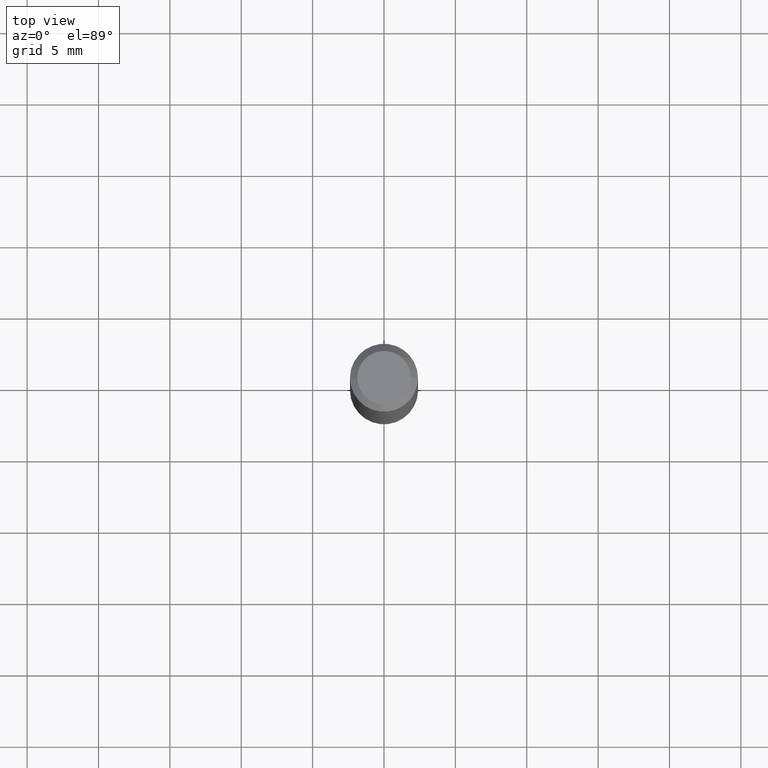
[diagram: clean part render]
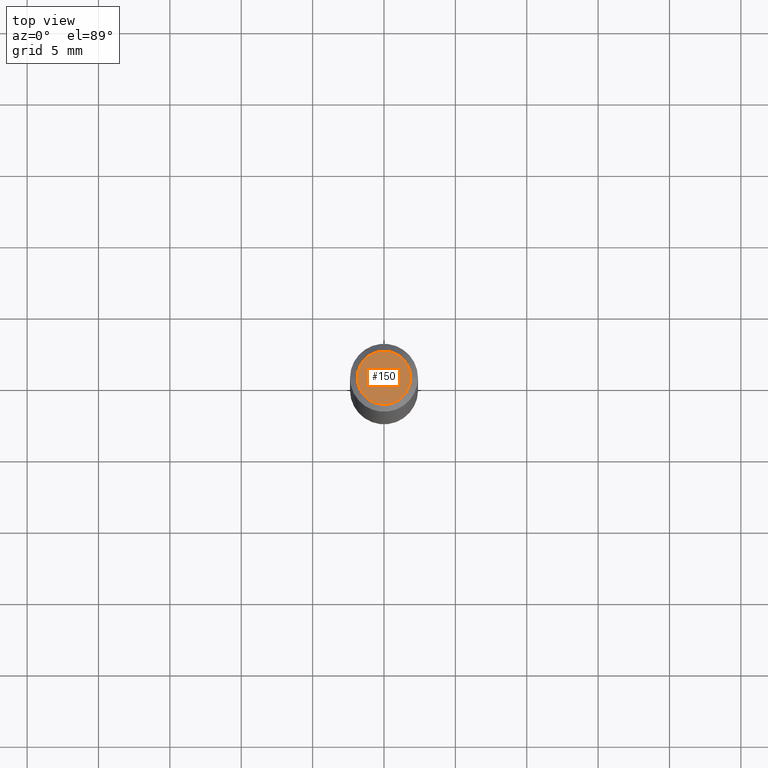
[diagram: same view with one face highlighted and labeled with its STEP entity id]
A machine part, top view. The second image highlights one B-rep face of the part: STEP entity #150.
In plain terms, the highlighted planar face has unit normal (0, -0, -1).
Its self-contained STEP definition (entity closure, byte-faithful):
#20 = CIRCLE ( 'NONE', #233, 0.07374999999999988509 ) ;
#64 = CARTESIAN_POINT ( 'NONE',  ( 5.149934974793613022E-16, 0.07374999999999988509, -2.553624924946313252E-16 ) ) ;
#75 = ORIENTED_EDGE ( 'NONE', *, *, #112, .T. ) ;
#112 = EDGE_CURVE ( 'NONE', #145, #187, #363, .T. ) ;
#123 = PLANE ( 'NONE',  #306 ) ;
#140 = DIRECTION ( 'NONE',  ( -2.445468806185136597E-29, 3.491481338843145583E-15, 1.000000000000000000 ) ) ;
#145 = VERTEX_POINT ( 'NONE', #343 ) ;
#150 = ADVANCED_FACE ( 'NONE', ( #155 ), #123, .F. ) ;
#152 = CARTESIAN_POINT ( 'NONE',  ( -1.043851414335219820E-46, 1.490343170380447200E-32, 4.268512490100411279E-18 ) ) ;
#155 = FACE_OUTER_BOUND ( 'NONE', #196, .T. ) ;
#187 = VERTEX_POINT ( 'NONE', #237 ) ;
#196 = EDGE_LOOP ( 'NONE', ( #278, #75 ) ) ;
#213 = AXIS2_PLACEMENT_3D ( 'NONE', #253, #140, #281 ) ;
#233 = AXIS2_PLACEMENT_3D ( 'NONE', #152, #255, #365 ) ;
#237 = CARTESIAN_POINT ( 'NONE',  ( -0.07374999999999988509, 5.499083108677923596E-16, 4.268512490096688071E-18 ) ) ;
#253 = CARTESIAN_POINT ( 'NONE',  ( -1.043851414335219820E-46, 1.490343170380447200E-32, 4.268512490100411279E-18 ) ) ;
#255 = DIRECTION ( 'NONE',  ( -2.445468806185136597E-29, 3.491481338843145583E-15, 1.000000000000000000 ) ) ;
#278 = ORIENTED_EDGE ( 'NONE', *, *, #337, .T. ) ;
#281 = DIRECTION ( 'NONE',  ( 1.000000000000000000, -6.982962677686265922E-15, 4.875869617646592813E-29 ) ) ;
#289 = DIRECTION ( 'NONE',  ( 2.438088387897960049E-29, -3.491481338843145188E-15, -1.000000000000000000 ) ) ;
#306 = AXIS2_PLACEMENT_3D ( 'NONE', #64, #289, #349 ) ;
#337 = EDGE_CURVE ( 'NONE', #187, #145, #20, .T. ) ;
#343 = CARTESIAN_POINT ( 'NONE',  ( 0.07374999999999988509, -6.094815207017963170E-16, 4.268512490104342487E-18 ) ) ;
#349 = DIRECTION ( 'NONE',  ( -1.000000000000000000, 6.982962677686265922E-15, -4.876176775795935793E-29 ) ) ;
#363 = CIRCLE ( 'NONE', #213, 0.07374999999999988509 ) ;
#365 = DIRECTION ( 'NONE',  ( 1.000000000000000000, -6.982962677686265922E-15, 4.875869617646592813E-29 ) ) ;